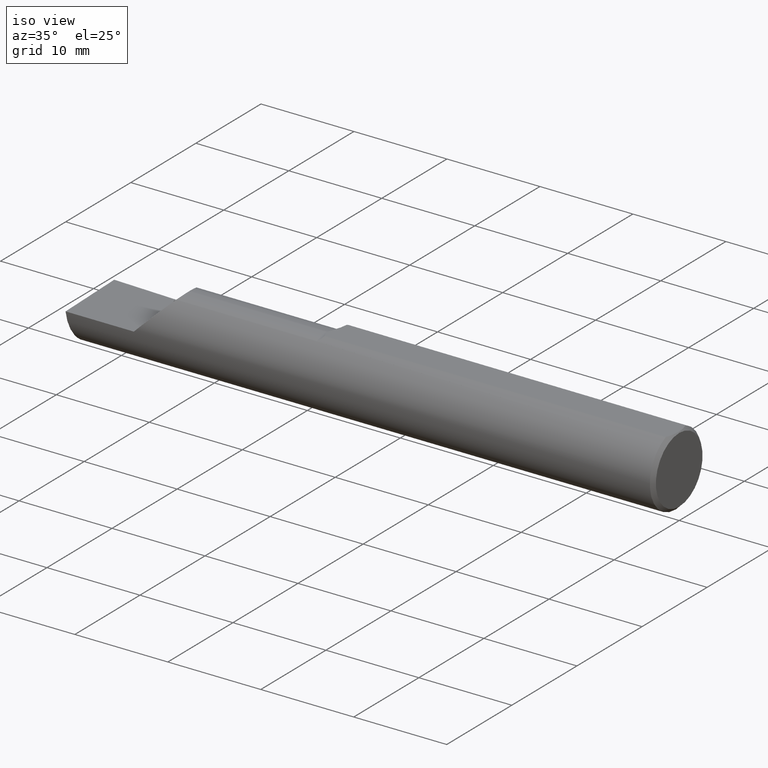
[diagram: clean part render]
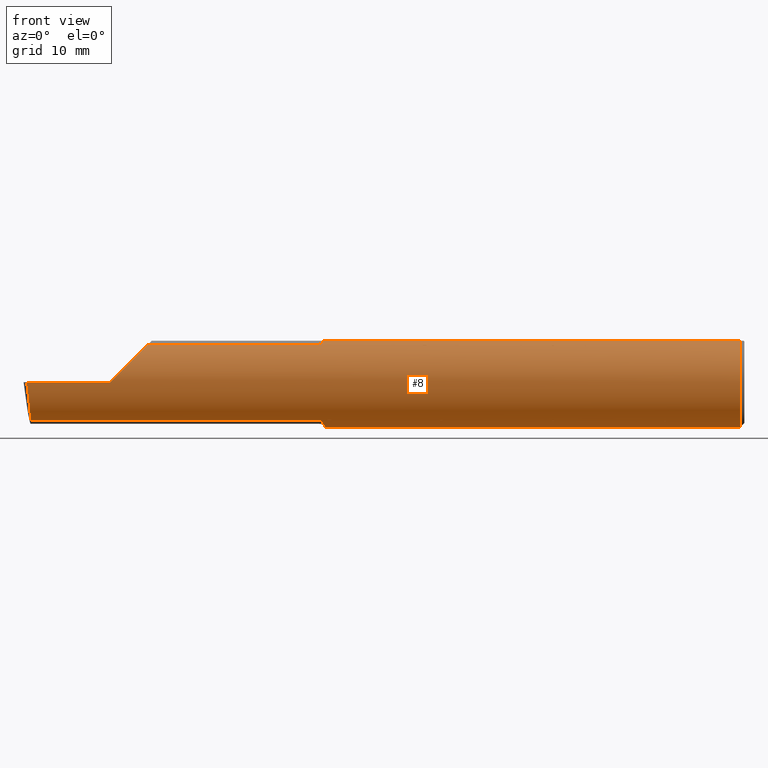
[diagram: tour spotlight — one face highlighted and labeled with its STEP entity id]
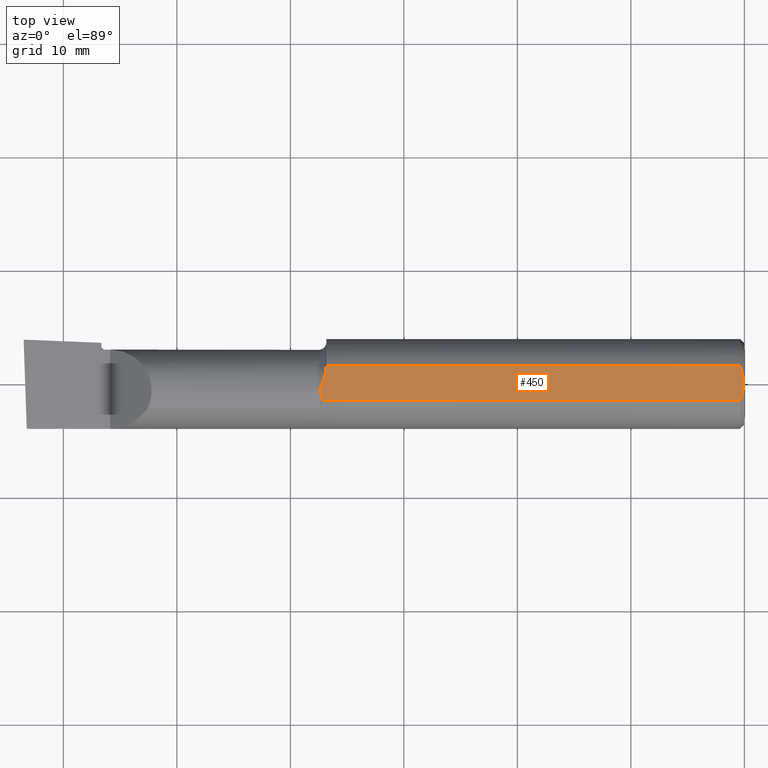
[diagram: tour spotlight — one face highlighted and labeled with its STEP entity id]
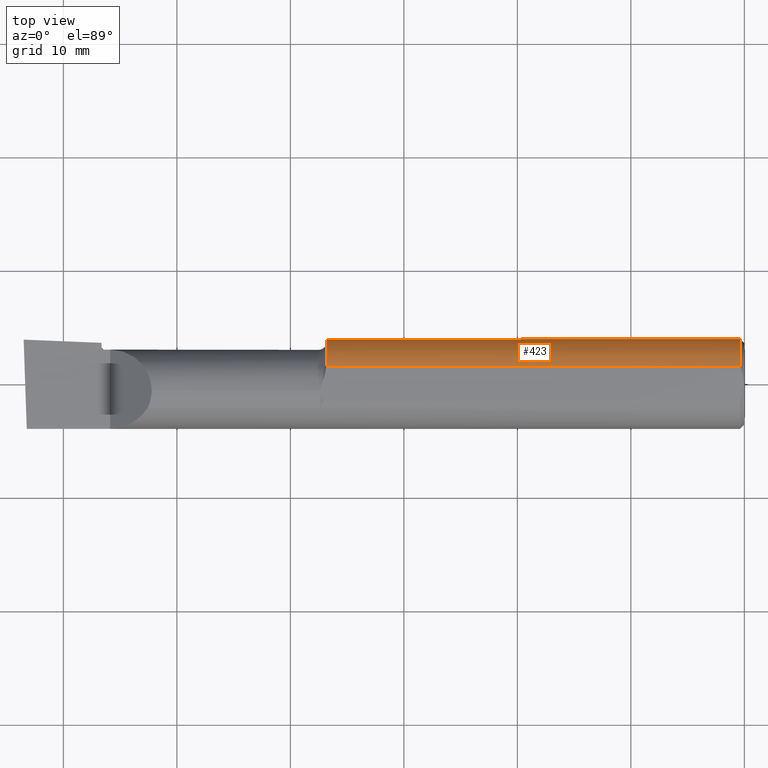
[diagram: tour spotlight — one face highlighted and labeled with its STEP entity id]
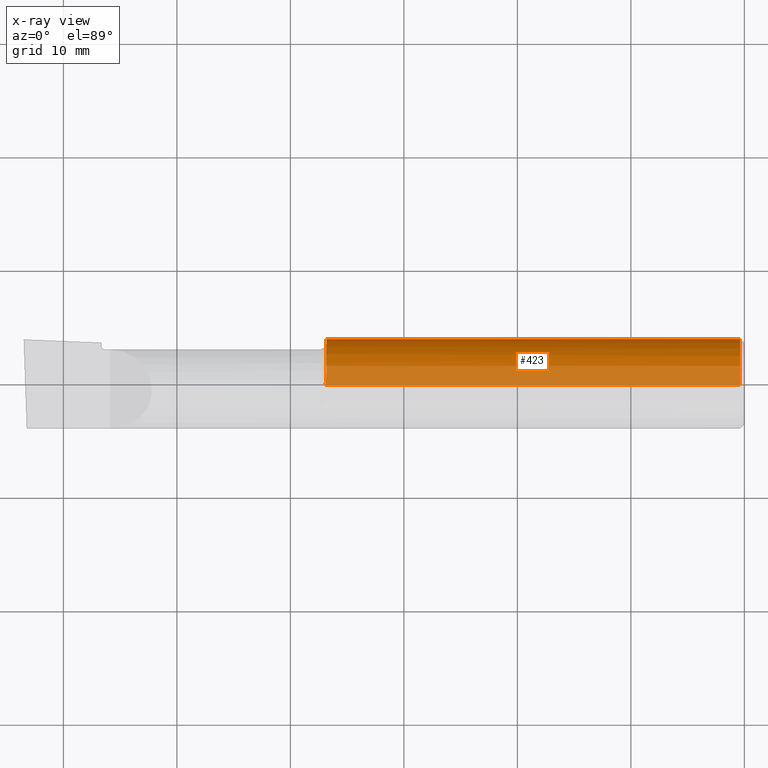
[diagram: x-ray of the same camera — body ghosted, this tour face saturated]
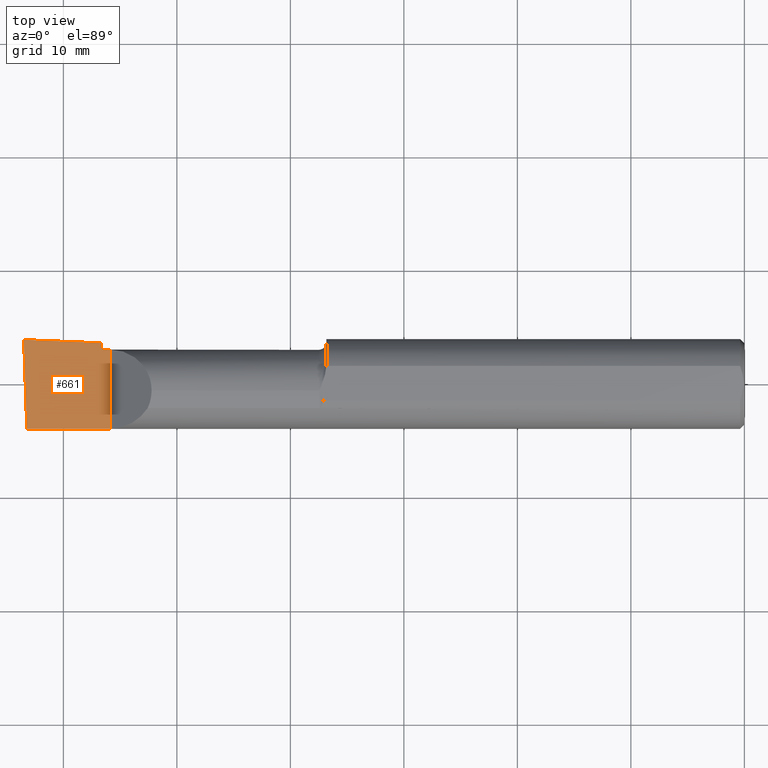
[diagram: tour spotlight — one face highlighted and labeled with its STEP entity id]
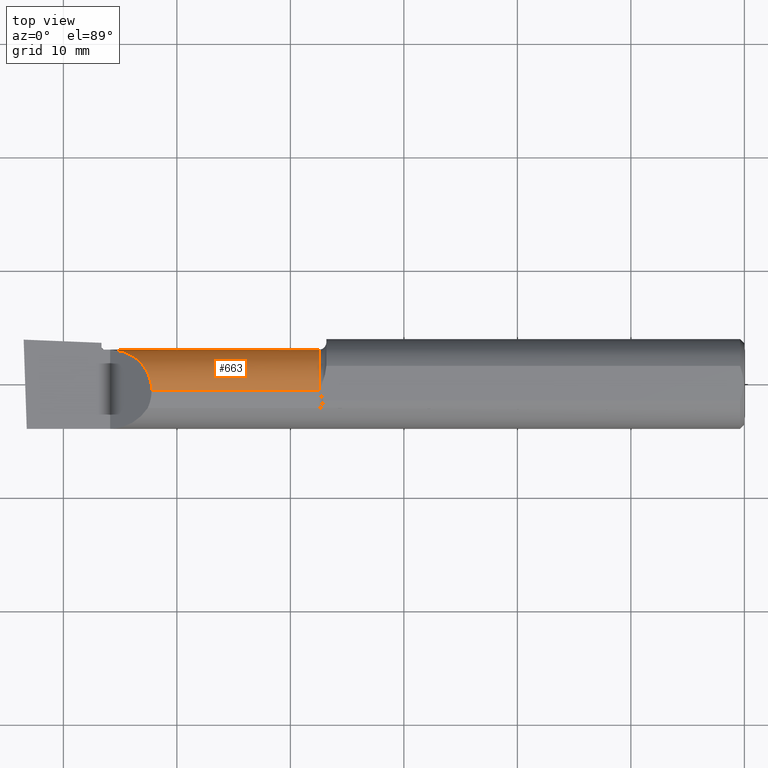
[diagram: tour spotlight — one face highlighted and labeled with its STEP entity id]
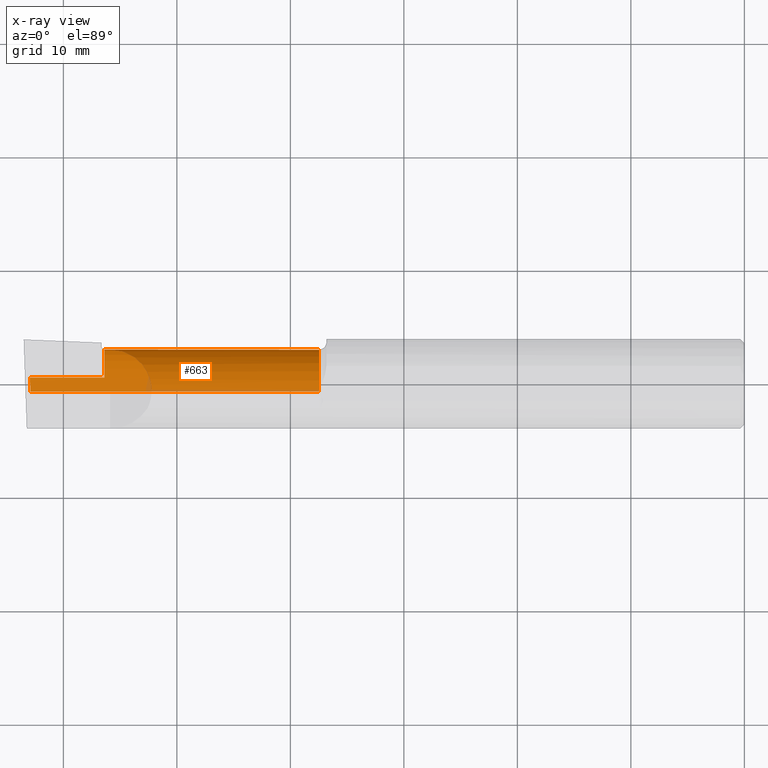
[diagram: x-ray of the same camera — body ghosted, this tour face saturated]
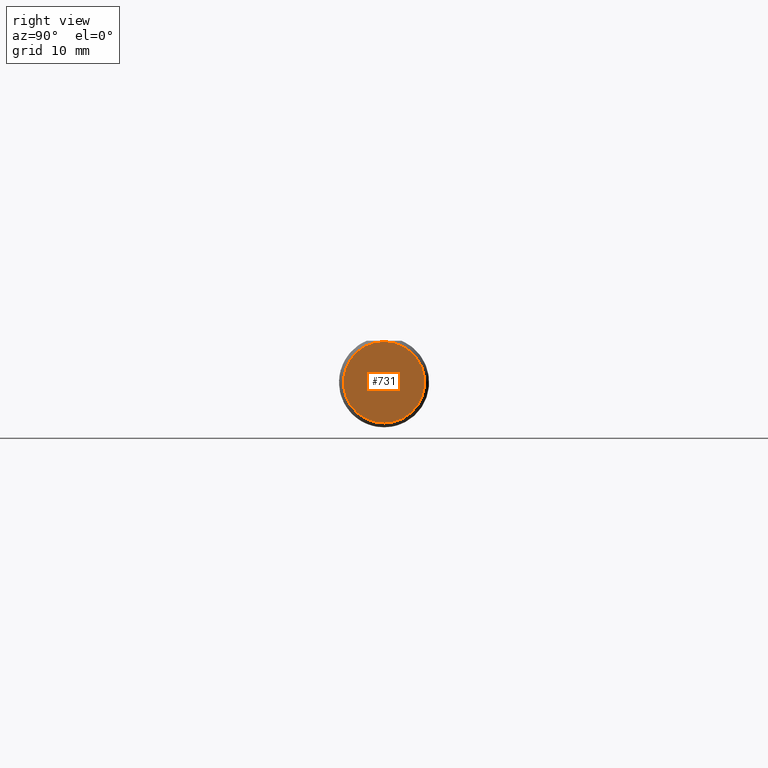
[diagram: tour spotlight — one face highlighted and labeled with its STEP entity id]
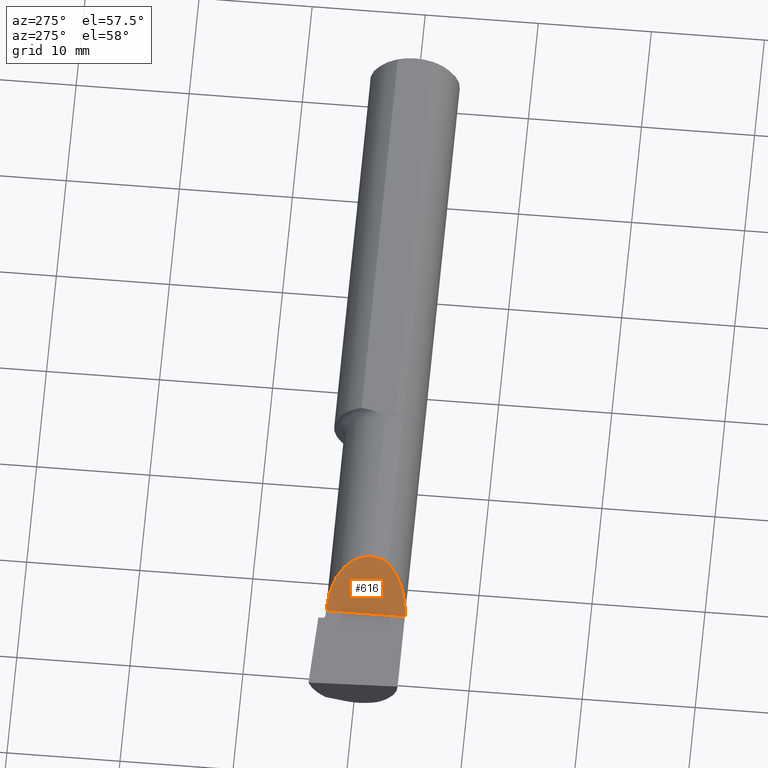
[diagram: tour spotlight — one face highlighted and labeled with its STEP entity id]
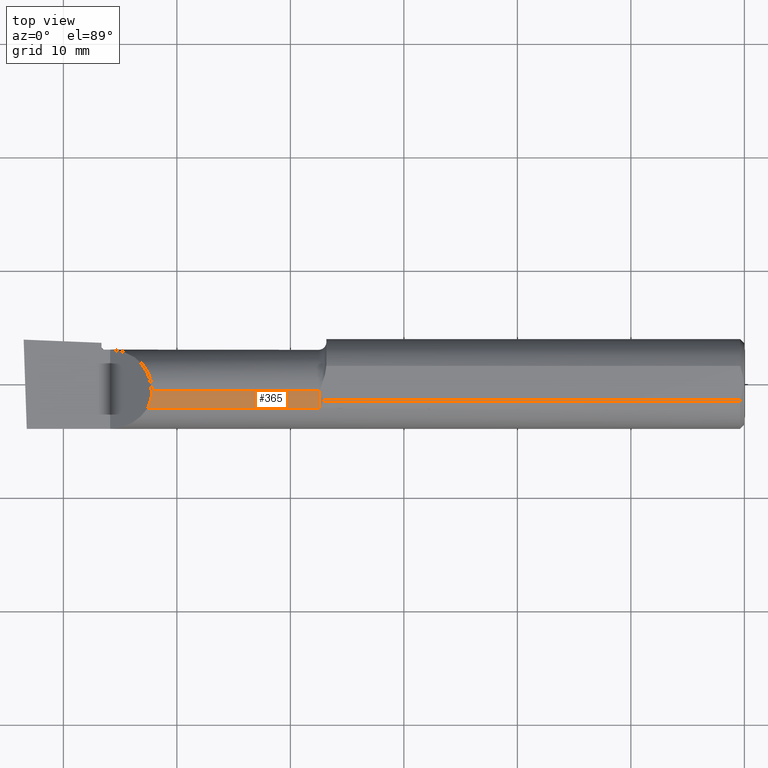
[diagram: tour spotlight — one face highlighted and labeled with its STEP entity id]
A machine part: a face-by-face anatomy tour. The part has 20 B-rep faces; the first image is the clean iso view, then the 8 largest visible faces are spotlighted one at a time (largest first), each with its STEP entity span.

Face 1 — front view, entity #8. In plain terms, the highlighted cylindrical surface (partial cylindrical patch) has radius 3.9649 mm, axis along (1, -0, -0).
Definition (entity closure, byte-faithful):
#1 = CARTESIAN_POINT ( 'NONE',  ( -2.199999999999999289, -0.1560999999999999888, 3.826894855694925850E-18 ) ) ;
#8 = ADVANCED_FACE ( 'NONE', ( #540 ), #366, .T. ) ;
#9 = CARTESIAN_POINT ( 'NONE',  ( -1.473482932671292822, -0.08569999999999937390, -0.1304711462354803675 ) ) ;
#12 = EDGE_CURVE ( 'NONE', #191, #582, #621, .T. ) ;
#13 = LINE ( 'NONE', #735, #565 ) ;
#31 = CARTESIAN_POINT ( 'NONE',  ( -1.452458313762935438, 4.840126649484621828E-13, -0.1560999999999999888 ) ) ;
#37 = EDGE_CURVE ( 'NONE', #448, #57, #388, .T. ) ;
#47 = ORIENTED_EDGE ( 'NONE', *, *, #668, .T. ) ;
#57 = VERTEX_POINT ( 'NONE', #1 ) ;
#58 = CARTESIAN_POINT ( 'NONE',  ( -0.01500000000000024925, 0.000000000000000000, 0.000000000000000000 ) ) ;
#68 = EDGE_CURVE ( 'NONE', #57, #191, #234, .T. ) ;
#71 = CARTESIAN_POINT ( 'NONE',  ( -2.482667168175673122, -0.1560999999999999888, -0.05371247775559874482 ) ) ;
#72 = B_SPLINE_CURVE_WITH_KNOTS ( 'NONE', 3,
 ( #368, #9, #486, #653, #484, #353, #710, #122, #182, #475, #605, #73 ),
 .UNSPECIFIED., .F., .F.,
 ( 4, 2, 2, 2, 2, 4 ),
 ( 1.966861314630388892E-07, 0.0001139043861855418911, 0.0002276120862396207255, 0.0004550274863477778522, 0.0009098582865640920513, 0.001819519886996720341 ),
 .UNSPECIFIED. ) ;
#73 = CARTESIAN_POINT ( 'NONE',  ( -1.454862523376329930, -0.02500000000022618157, -0.1540850739039595352 ) ) ;
#84 = CARTESIAN_POINT ( 'NONE',  ( -1.469508261956889994, -0.08224208440130481579, 0.1326837206089797327 ) ) ;
#87 = EDGE_LOOP ( 'NONE', ( #94, #285, #47, #445, #559, #316, #493, #692, #222, #157, #342 ) ) ;
#94 = ORIENTED_EDGE ( 'NONE', *, *, #687, .T. ) ;
#109 = VERTEX_POINT ( 'NONE', #492 ) ;
#113 = DIRECTION ( 'NONE',  ( 0.000000000000000000, 0.000000000000000000, 1.000000000000000000 ) ) ;
#122 = CARTESIAN_POINT ( 'NONE',  ( -1.463126895908789304, -0.06887538526317449339, -0.1401954838979543316 ) ) ;
#128 = DIRECTION ( 'NONE',  ( 1.000000000000000000, -0.000000000000000000, -0.000000000000000000 ) ) ;
#134 = B_SPLINE_CURVE_WITH_KNOTS ( 'NONE', 3,
 ( #455, #686, #339, #156, #574, #84, #322, #449, #494, #155 ),
 .UNSPECIFIED., .F., .F.,
 ( 4, 2, 2, 2, 4 ),
 ( 5.292347910167346680E-07, 0.0004247077115782347829, 0.0006367969499718469746, 0.0007428415691686530162, 0.0008488861883654591663 ),
 .UNSPECIFIED. ) ;
#141 = CARTESIAN_POINT ( 'NONE',  ( -2.475676552398977215, -0.08569999999999922125, -0.1304711462354804230 ) ) ;
#144 = CARTESIAN_POINT ( 'NONE',  ( -1.453095797791018828, -0.008405471570478762616, -0.1561000000000260235 ) ) ;
#146 = VERTEX_POINT ( 'NONE', #509 ) ;
#155 = CARTESIAN_POINT ( 'NONE',  ( -1.474999999999999867, -0.08569999999999944329, 0.1304711462354802842 ) ) ;
#156 = CARTESIAN_POINT ( 'NONE',  ( -1.466324726609743001, -0.07684337455390498339, 0.1359013108991525554 ) ) ;
#157 = ORIENTED_EDGE ( 'NONE', *, *, #12, .T. ) ;
#163 = EDGE_CURVE ( 'NONE', #582, #617, #13, .T. ) ;
#173 = DIRECTION ( 'NONE',  ( 1.000000000000000000, -0.000000000000000000, -0.000000000000000000 ) ) ;
#182 = CARTESIAN_POINT ( 'NONE',  ( -1.461707069840809892, -0.06372296352525426422, -0.1426158673174760527 ) ) ;
#183 = CARTESIAN_POINT ( 'NONE',  ( -2.489266190342419360, -0.1561000000000000165, 3.826894855694925850E-18 ) ) ;
#186 = DIRECTION ( 'NONE',  ( -1.000000000000000000, -0.000000000000000000, -0.000000000000000000 ) ) ;
#191 = VERTEX_POINT ( 'NONE', #183 ) ;
#195 = DIRECTION ( 'NONE',  ( -1.000000000000000000, 0.000000000000000000, 0.000000000000000000 ) ) ;
#200 = CARTESIAN_POINT ( 'NONE',  ( -2.069528853764522669, -0.08570000000000299600, 0.1304711462354783136 ) ) ;
#205 = DIRECTION ( 'NONE',  ( 1.000000000000000000, -0.000000000000000000, -0.000000000000000000 ) ) ;
#210 = VECTOR ( 'NONE', #195, 39.37007874015748143 ) ;
#222 = ORIENTED_EDGE ( 'NONE', *, *, #68, .T. ) ;
#234 = LINE ( 'NONE', #658, #530 ) ;
#259 = AXIS2_PLACEMENT_3D ( 'NONE', #603, #128, #696 ) ;
#274 = EDGE_CURVE ( 'NONE', #670, #622, #134, .T. ) ;
#277 = EDGE_CURVE ( 'NONE', #146, #623, #537, .T. ) ;
#285 = ORIENTED_EDGE ( 'NONE', *, *, #277, .T. ) ;
#288 = CARTESIAN_POINT ( 'NONE',  ( -2.069528853764522669, -0.08570000000000299600, 0.1304711462354783136 ) ) ;
#294 = CARTESIAN_POINT ( 'NONE',  ( -2.099017382551549460, -0.1305938407426061876, 0.1009826174484516337 ) ) ;
#300 = CARTESIAN_POINT ( 'NONE',  ( -1.474999999999999867, -0.08569999999999930451, -0.1304711462354803397 ) ) ;
#313 = EDGE_CURVE ( 'NONE', #622, #448, #382, .T. ) ;
#316 = ORIENTED_EDGE ( 'NONE', *, *, #274, .T. ) ;
#322 = CARTESIAN_POINT ( 'NONE',  ( -1.470308733175472060, -0.08325729668116128857, 0.1320471792325037530 ) ) ;
#324 = VERTEX_POINT ( 'NONE', #618 ) ;
#334 = CARTESIAN_POINT ( 'NONE',  ( -1.453876643924216339, -0.01674057265308588963, -0.1554251497364122214 ) ) ;
#339 = CARTESIAN_POINT ( 'NONE',  ( -1.463486186723763405, -0.06993940022577681270, 0.1396536156489262825 ) ) ;
#341 = EDGE_CURVE ( 'NONE', #109, #670, #734, .T. ) ;
#342 = ORIENTED_EDGE ( 'NONE', *, *, #163, .T. ) ;
#353 = CARTESIAN_POINT ( 'NONE',  ( -1.467151728812752909, -0.07866717671370132559, -0.1348531152278540646 ) ) ;
#366 = CYLINDRICAL_SURFACE ( 'NONE', #259, 0.1560999999999999888 ) ;
#367 = CARTESIAN_POINT ( 'NONE',  ( -1.452458313762935438, 4.840126649484621828E-13, -0.1560999999999999888 ) ) ;
#368 = CARTESIAN_POINT ( 'NONE',  ( -1.474999999999999867, -0.08569999999999930451, -0.1304711462354803397 ) ) ;
#382 = LINE ( 'NONE', #393, #210 ) ;
#388 =( BOUNDED_CURVE ( )  B_SPLINE_CURVE ( 3, ( #288, #294, #414, #584 ),
 .UNSPECIFIED., .F., .T. ) 
 B_SPLINE_CURVE_WITH_KNOTS ( ( 4, 4 ),
 ( 0.5811757715714754857, 1.570796326794896558 ),
 .UNSPECIFIED. ) 
 CURVE ( )  GEOMETRIC_REPRESENTATION_ITEM ( )  RATIONAL_B_SPLINE_CURVE ( ( 1.000000000000000000, 0.9200392120920011241, 0.9200392120920011241, 1.000000000000000000 ) ) 
 REPRESENTATION_ITEM ( '' )  );
#393 = CARTESIAN_POINT ( 'NONE',  ( -1.847499999999999920, -0.08569999999999922125, 0.1304711462354804230 ) ) ;
#414 = CARTESIAN_POINT ( 'NONE',  ( -2.146287522244403334, -0.1560999999999999888, 0.05371247775559713500 ) ) ;
#445 = ORIENTED_EDGE ( 'NONE', *, *, #577, .T. ) ;
#448 = VERTEX_POINT ( 'NONE', #200 ) ;
#449 = CARTESIAN_POINT ( 'NONE',  ( -1.472282960142827113, -0.08496306084893968935, 0.1309561502377617759 ) ) ;
#455 = CARTESIAN_POINT ( 'NONE',  ( -1.460843495424060334, -0.06001999666777307896, 0.1440999999999999504 ) ) ;
#475 = CARTESIAN_POINT ( 'NONE',  ( -1.457963511987622862, -0.04781653154435672182, -0.1490354188630817478 ) ) ;
#481 = CARTESIAN_POINT ( 'NONE',  ( -2.477743596163800799, -0.1305938407426047165, -0.1009826174484543537 ) ) ;
#484 = CARTESIAN_POINT ( 'NONE',  ( -1.469310887745682193, -0.08198244806377580352, -0.1328448627315361730 ) ) ;
#486 = CARTESIAN_POINT ( 'NONE',  ( -1.472162220462625681, -0.08489276752862849607, -0.1310023188550718809 ) ) ;
#492 = CARTESIAN_POINT ( 'NONE',  ( -0.01500000000000024925, -0.06001999666777732556, 0.1440999999999999781 ) ) ;
#493 = ORIENTED_EDGE ( 'NONE', *, *, #313, .T. ) ;
#494 = CARTESIAN_POINT ( 'NONE',  ( -1.473558490372086416, -0.08570000000287442132, 0.1304711462335921557 ) ) ;
#498 = LINE ( 'NONE', #547, #647 ) ;
#509 = CARTESIAN_POINT ( 'NONE',  ( -1.454862523376329930, -0.02500000000022618157, -0.1540850739039595352 ) ) ;
#528 = VECTOR ( 'NONE', #562, 39.37007874015748143 ) ;
#530 = VECTOR ( 'NONE', #186, 39.37007874015748143 ) ;
#536 = AXIS2_PLACEMENT_3D ( 'NONE', #58, #644, #113 ) ;
#537 = B_SPLINE_CURVE_WITH_KNOTS ( 'NONE', 3,
 ( #620, #334, #144, #31 ),
 .UNSPECIFIED., .F., .F.,
 ( 4, 4 ),
 ( 0.001819519886996720341, 0.002475127250578835168 ),
 .UNSPECIFIED. ) ;
#540 = FACE_OUTER_BOUND ( 'NONE', #87, .T. ) ;
#547 = CARTESIAN_POINT ( 'NONE',  ( -2.500000000000000000, 0.000000000000000000, -0.1560999999999999888 ) ) ;
#548 = CARTESIAN_POINT ( 'NONE',  ( -2.475676552398977215, -0.08569999999999922125, -0.1304711462354804230 ) ) ;
#559 = ORIENTED_EDGE ( 'NONE', *, *, #341, .T. ) ;
#562 = DIRECTION ( 'NONE',  ( -1.000000000000000000, 0.000000000000000000, 0.000000000000000000 ) ) ;
#565 = VECTOR ( 'NONE', #205, 39.37007874015748143 ) ;
#567 = CARTESIAN_POINT ( 'NONE',  ( -2.500000000000000000, -0.06001999666777736719, 0.1440999999999999504 ) ) ;
#574 = CARTESIAN_POINT ( 'NONE',  ( -1.467376702052391790, -0.07908290169519974211, 0.1346075232099597507 ) ) ;
#577 = EDGE_CURVE ( 'NONE', #324, #109, #699, .T. ) ;
#582 = VERTEX_POINT ( 'NONE', #141 ) ;
#584 = CARTESIAN_POINT ( 'NONE',  ( -2.199999999999999289, -0.1560999999999999888, 3.826894855694925850E-18 ) ) ;
#603 = CARTESIAN_POINT ( 'NONE',  ( -2.500000000000000000, 0.000000000000000000, 0.000000000000000000 ) ) ;
#605 = CARTESIAN_POINT ( 'NONE',  ( -1.456230440715365448, -0.03646003586407847719, -0.1522257056384942187 ) ) ;
#617 = VERTEX_POINT ( 'NONE', #300 ) ;
#618 = CARTESIAN_POINT ( 'NONE',  ( -0.01500000000000024925, 0.000000000000000000, -0.1560999999999999888 ) ) ;
#620 = CARTESIAN_POINT ( 'NONE',  ( -1.454862523376329930, -0.02500000000022618157, -0.1540850739039595352 ) ) ;
#621 =( BOUNDED_CURVE ( )  B_SPLINE_CURVE ( 3, ( #747, #71, #481, #548 ),
 .UNSPECIFIED., .F., .T. ) 
 B_SPLINE_CURVE_WITH_KNOTS ( ( 4, 4 ),
 ( 4.987330662103025780, 5.976951217326474719 ),
 .UNSPECIFIED. ) 
 CURVE ( )  GEOMETRIC_REPRESENTATION_ITEM ( )  RATIONAL_B_SPLINE_CURVE ( ( 1.000000000000000000, 0.9200392120919966832, 0.9200392120919966832, 1.000000000000000000 ) ) 
 REPRESENTATION_ITEM ( '' )  );
#622 = VERTEX_POINT ( 'NONE', #667 ) ;
#623 = VERTEX_POINT ( 'NONE', #367 ) ;
#644 = DIRECTION ( 'NONE',  ( -1.000000000000000000, 0.000000000000000000, 0.000000000000000000 ) ) ;
#647 = VECTOR ( 'NONE', #173, 39.37007874015748143 ) ;
#653 = CARTESIAN_POINT ( 'NONE',  ( -1.470128093538974889, -0.08306175160951252689, -0.1321708551218283567 ) ) ;
#658 = CARTESIAN_POINT ( 'NONE',  ( -2.056000000000000050, -0.1560999999999999888, 3.826894855694925850E-18 ) ) ;
#667 = CARTESIAN_POINT ( 'NONE',  ( -1.474999999999999867, -0.08569999999999944329, 0.1304711462354802842 ) ) ;
#668 = EDGE_CURVE ( 'NONE', #623, #324, #498, .T. ) ;
#670 = VERTEX_POINT ( 'NONE', #700 ) ;
#686 = CARTESIAN_POINT ( 'NONE',  ( -1.462083001804619808, -0.06507129184707162450, 0.1419960532975073908 ) ) ;
#687 = EDGE_CURVE ( 'NONE', #617, #146, #72, .T. ) ;
#692 = ORIENTED_EDGE ( 'NONE', *, *, #37, .T. ) ;
#696 = DIRECTION ( 'NONE',  ( 0.000000000000000000, 0.000000000000000000, -1.000000000000000000 ) ) ;
#699 = CIRCLE ( 'NONE', #536, 0.1560999999999999888 ) ;
#700 = CARTESIAN_POINT ( 'NONE',  ( -1.460843495424060334, -0.06001999666777307896, 0.1440999999999999504 ) ) ;
#710 = CARTESIAN_POINT ( 'NONE',  ( -1.466062054560814065, -0.07627963852233818343, -0.1362221433799750414 ) ) ;
#734 = LINE ( 'NONE', #567, #528 ) ;
#735 = CARTESIAN_POINT ( 'NONE',  ( -1.847499999999999920, -0.08569999999999922125, -0.1304711462354804230 ) ) ;
#747 = CARTESIAN_POINT ( 'NONE',  ( -2.489266190342419360, -0.1561000000000000165, 3.826894855694925850E-18 ) ) ;

Face 2 — top view, entity #450. In plain terms, the highlighted planar face has unit normal (0, 0, 1).
Definition (entity closure, byte-faithful):
#45 = CARTESIAN_POINT ( 'NONE',  ( -1.471844053232376659, -0.02500000000003148315, 0.1440999999999999504 ) ) ;
#48 = AXIS2_PLACEMENT_3D ( 'NONE', #289, #526, #521 ) ;
#63 = CARTESIAN_POINT ( 'NONE',  ( -1.468148277183320971, -0.03981762987256244612, 0.1440999999999999504 ) ) ;
#74 = CARTESIAN_POINT ( 'NONE',  ( -0.004112937275917732775, 0.02048434576366622156, 0.1440999999999999226 ) ) ;
#79 = B_SPLINE_CURVE_WITH_KNOTS ( 'NONE', 3,
 ( #275, #517, #271, #514, #208, #637 ),
 .UNSPECIFIED., .F., .F.,
 ( 4, 2, 4 ),
 ( 0.005420603660124381773, 0.006200393792043773673, 0.006980183923963165574 ),
 .UNSPECIFIED. ) ;
#100 = VERTEX_POINT ( 'NONE', #390 ) ;
#109 = VERTEX_POINT ( 'NONE', #492 ) ;
#114 = CARTESIAN_POINT ( 'NONE',  ( -1.464985600317321612, -0.04846509284843828619, 0.1440999999999999504 ) ) ;
#127 = CARTESIAN_POINT ( 'NONE',  ( -1.469201185154610068, -0.03693468910894925211, 0.1440999999999999504 ) ) ;
#130 = CARTESIAN_POINT ( 'NONE',  ( -0.008307085287356189701, 0.04068523568973313881, 0.1441000000000000059 ) ) ;
#137 = EDGE_CURVE ( 'NONE', #100, #566, #319, .T. ) ;
#165 = VECTOR ( 'NONE', #684, 39.37007874015748143 ) ;
#167 = CARTESIAN_POINT ( 'NONE',  ( -1.450050504025077291, 0.06001999666777734638, 0.1440999999999999504 ) ) ;
#170 = ORIENTED_EDGE ( 'NONE', *, *, #711, .T. ) ;
#176 = ORIENTED_EDGE ( 'NONE', *, *, #341, .F. ) ;
#208 = CARTESIAN_POINT ( 'NONE',  ( -0.01133355301893011931, -0.05048430180739575668, 0.1440999999999999781 ) ) ;
#221 = CARTESIAN_POINT ( 'NONE',  ( -1.463353959584570596, 0.002866311517161839687, 0.1440999999999999504 ) ) ;
#229 = CARTESIAN_POINT ( 'NONE',  ( -1.454082834115635547, 0.03088512097718992475, 0.1440999999999999781 ) ) ;
#242 = CARTESIAN_POINT ( 'NONE',  ( -1.450050504025077291, 0.06001999666777734638, 0.1440999999999999504 ) ) ;
#251 = CARTESIAN_POINT ( 'NONE',  ( -0.003000000000000205194, 0.01020794464685660825, 0.1440999999999999781 ) ) ;
#265 = EDGE_CURVE ( 'NONE', #566, #109, #79, .T. ) ;
#271 = CARTESIAN_POINT ( 'NONE',  ( -0.004121137220901559609, -0.02053748477038522605, 0.1441000000000000059 ) ) ;
#275 = CARTESIAN_POINT ( 'NONE',  ( -0.003000000000000204760, 6.421145895685612357E-21, 0.1440999999999999504 ) ) ;
#289 = CARTESIAN_POINT ( 'NONE',  ( 2.500000000000000000, 0.06250000000000000000, 0.1440999999999999504 ) ) ;
#306 = CARTESIAN_POINT ( 'NONE',  ( -1.471844053232376659, -0.02500000000003148315, 0.1440999999999999504 ) ) ;
#319 = B_SPLINE_CURVE_WITH_KNOTS ( 'NONE', 3,
 ( #435, #718, #130, #74, #251, #724 ),
 .UNSPECIFIED., .F., .F.,
 ( 4, 2, 4 ),
 ( 0.003862504283746397583, 0.004641553971935389461, 0.005420603660124381773 ),
 .UNSPECIFIED. ) ;
#327 = B_SPLINE_CURVE_WITH_KNOTS ( 'NONE', 3,
 ( #167, #404, #229, #697, #221, #344, #415, #420, #595, #45 ),
 .UNSPECIFIED., .F., .F.,
 ( 4, 2, 2, 2, 4 ),
 ( 0.01301670781631528509, 0.01412932456335375814, 0.01468563293687299640, 0.01496378712363261726, 0.01524194131039223639 ),
 .UNSPECIFIED. ) ;
#333 = EDGE_LOOP ( 'NONE', ( #510, #383, #170, #176, #527, #446 ) ) ;
#341 = EDGE_CURVE ( 'NONE', #109, #670, #734, .T. ) ;
#344 = CARTESIAN_POINT ( 'NONE',  ( -1.467139718007820059, -0.007416860360642662381, 0.1440999999999999504 ) ) ;
#383 = ORIENTED_EDGE ( 'NONE', *, *, #539, .T. ) ;
#389 = LINE ( 'NONE', #678, #165 ) ;
#390 = CARTESIAN_POINT ( 'NONE',  ( -0.01500000000000023884, 0.06001999666777732556, 0.1440999999999999504 ) ) ;
#396 = EDGE_CURVE ( 'NONE', #727, #100, #389, .T. ) ;
#404 = CARTESIAN_POINT ( 'NONE',  ( -1.450532541532473463, 0.04511886254872560231, 0.1440999999999999504 ) ) ;
#411 = CARTESIAN_POINT ( 'NONE',  ( -0.003000000000000204760, 6.421145895685612357E-21, 0.1440999999999999504 ) ) ;
#415 = CARTESIAN_POINT ( 'NONE',  ( -1.468418672230969779, -0.01083899323586181608, 0.1440999999999999504 ) ) ;
#420 = CARTESIAN_POINT ( 'NONE',  ( -1.470724021719190588, -0.01776615298045939803, 0.1440999999999999781 ) ) ;
#435 = CARTESIAN_POINT ( 'NONE',  ( -0.01500000000000023884, 0.06001999666777732556, 0.1440999999999999504 ) ) ;
#446 = ORIENTED_EDGE ( 'NONE', *, *, #137, .F. ) ;
#450 = ADVANCED_FACE ( 'NONE', ( #581 ), #740, .T. ) ;
#492 = CARTESIAN_POINT ( 'NONE',  ( -0.01500000000000024925, -0.06001999666777732556, 0.1440999999999999781 ) ) ;
#510 = ORIENTED_EDGE ( 'NONE', *, *, #396, .F. ) ;
#514 = CARTESIAN_POINT ( 'NONE',  ( -0.008316884378888314902, -0.04071872938164906863, 0.1440999999999999226 ) ) ;
#517 = CARTESIAN_POINT ( 'NONE',  ( -0.003000000000000203892, -0.01021764673483457724, 0.1440999999999999781 ) ) ;
#521 = DIRECTION ( 'NONE',  ( 1.000000000000000000, 0.000000000000000000, -0.000000000000000000 ) ) ;
#526 = DIRECTION ( 'NONE',  ( 0.000000000000000000, 0.000000000000000000, 1.000000000000000000 ) ) ;
#527 = ORIENTED_EDGE ( 'NONE', *, *, #265, .F. ) ;
#528 = VECTOR ( 'NONE', #562, 39.37007874015748143 ) ;
#539 = EDGE_CURVE ( 'NONE', #727, #569, #327, .T. ) ;
#549 = CARTESIAN_POINT ( 'NONE',  ( -1.471844053232375105, -0.02804753169359753412, 0.1440999999999999781 ) ) ;
#562 = DIRECTION ( 'NONE',  ( -1.000000000000000000, 0.000000000000000000, 0.000000000000000000 ) ) ;
#566 = VERTEX_POINT ( 'NONE', #411 ) ;
#567 = CARTESIAN_POINT ( 'NONE',  ( -2.500000000000000000, -0.06001999666777736719, 0.1440999999999999504 ) ) ;
#569 = VERTEX_POINT ( 'NONE', #585 ) ;
#581 = FACE_OUTER_BOUND ( 'NONE', #333, .T. ) ;
#585 = CARTESIAN_POINT ( 'NONE',  ( -1.471844053232376659, -0.02500000000003148315, 0.1440999999999999504 ) ) ;
#592 = CARTESIAN_POINT ( 'NONE',  ( -1.471036826405246911, -0.03107590170041914929, 0.1440999999999999781 ) ) ;
#595 = CARTESIAN_POINT ( 'NONE',  ( -1.471844053232385985, -0.02136326841098664525, 0.1440999999999998948 ) ) ;
#602 = CARTESIAN_POINT ( 'NONE',  ( -1.462837095251398489, -0.05422015848554270073, 0.1440999999999999781 ) ) ;
#632 = B_SPLINE_CURVE_WITH_KNOTS ( 'NONE', 3,
 ( #306, #549, #592, #127, #63, #114, #602, #706 ),
 .UNSPECIFIED., .F., .F.,
 ( 4, 2, 2, 4 ),
 ( 0.0006785821176393244452, 0.0009116715494801274884, 0.001144760981320930640, 0.001610939845002537377 ),
 .UNSPECIFIED. ) ;
#637 = CARTESIAN_POINT ( 'NONE',  ( -0.01500000000000024925, -0.06001999666777732556, 0.1440999999999999781 ) ) ;
#670 = VERTEX_POINT ( 'NONE', #700 ) ;
#678 = CARTESIAN_POINT ( 'NONE',  ( -2.500000000000000000, 0.06001999666777736719, 0.1440999999999999504 ) ) ;
#684 = DIRECTION ( 'NONE',  ( 1.000000000000000000, -0.000000000000000000, -0.000000000000000000 ) ) ;
#697 = CARTESIAN_POINT ( 'NONE',  ( -1.460816084744947396, 0.009840729273027787327, 0.1440999999999999781 ) ) ;
#700 = CARTESIAN_POINT ( 'NONE',  ( -1.460843495424060334, -0.06001999666777307896, 0.1440999999999999504 ) ) ;
#706 = CARTESIAN_POINT ( 'NONE',  ( -1.460843495424060334, -0.06001999666777307896, 0.1440999999999999504 ) ) ;
#711 = EDGE_CURVE ( 'NONE', #569, #670, #632, .T. ) ;
#718 = CARTESIAN_POINT ( 'NONE',  ( -0.01132650618349836762, 0.05046597439866586793, 0.1440999999999999781 ) ) ;
#724 = CARTESIAN_POINT ( 'NONE',  ( -0.003000000000000204760, 6.421145895685612357E-21, 0.1440999999999999504 ) ) ;
#727 = VERTEX_POINT ( 'NONE', #242 ) ;
#734 = LINE ( 'NONE', #567, #528 ) ;
#740 = PLANE ( 'NONE',  #48 ) ;

Face 3 — top view, entity #423. An x-ray twin of the same camera follows (body ghosted, this face saturated) — the face is partly hidden behind the body. In plain terms, the highlighted cylindrical surface (partial cylindrical patch) has radius 3.9649 mm, axis along (1, -0, -0).
Definition (entity closure, byte-faithful):
#19 = DIRECTION ( 'NONE',  ( 0.000000000000000000, 0.000000000000000000, 1.000000000000000000 ) ) ;
#22 = ORIENTED_EDGE ( 'NONE', *, *, #396, .T. ) ;
#32 = EDGE_CURVE ( 'NONE', #623, #436, #209, .T. ) ;
#35 = CIRCLE ( 'NONE', #323, 0.1560999999999999888 ) ;
#64 = CARTESIAN_POINT ( 'NONE',  ( -1.450730260234562641, 0.03041887409375948828, -0.1532281963622442456 ) ) ;
#89 = CARTESIAN_POINT ( 'NONE',  ( -1.450000000000000178, 0.07070000000000016549, -0.1391715488165593539 ) ) ;
#99 = CIRCLE ( 'NONE', #610, 0.1560999999999999888 ) ;
#100 = VERTEX_POINT ( 'NONE', #390 ) ;
#101 = FACE_OUTER_BOUND ( 'NONE', #406, .T. ) ;
#118 = CARTESIAN_POINT ( 'NONE',  ( -1.450214390677043941, 0.04807667021748287389, -0.1486381104007177822 ) ) ;
#147 = DIRECTION ( 'NONE',  ( 1.000000000000000000, -0.000000000000000000, -0.000000000000000000 ) ) ;
#165 = VECTOR ( 'NONE', #684, 39.37007874015748143 ) ;
#166 = CARTESIAN_POINT ( 'NONE',  ( -1.450348850910508469, 0.04224677410306576508, -0.1503974671975661925 ) ) ;
#173 = DIRECTION ( 'NONE',  ( 1.000000000000000000, -0.000000000000000000, -0.000000000000000000 ) ) ;
#177 = CARTESIAN_POINT ( 'NONE',  ( -1.451609734521864148, 0.01225372253022634361, -0.1557388326591280514 ) ) ;
#209 = B_SPLINE_CURVE_WITH_KNOTS ( 'NONE', 3,
 ( #594, #707, #177, #422, #64, #166, #118, #588, #358, #410 ),
 .UNSPECIFIED., .F., .F.,
 ( 4, 2, 2, 2, 4 ),
 ( 0.002475127250578835168, 0.002949952465898010752, 0.003424777681217186336, 0.003899602896536361919, 0.004374428111855537503 ),
 .UNSPECIFIED. ) ;
#213 = CARTESIAN_POINT ( 'NONE',  ( -1.450050504025077291, 0.06001999666777734638, 0.1440999999999999504 ) ) ;
#239 = CARTESIAN_POINT ( 'NONE',  ( -0.01500000000000024925, 0.000000000000000000, 0.000000000000000000 ) ) ;
#242 = CARTESIAN_POINT ( 'NONE',  ( -1.450050504025077291, 0.06001999666777734638, 0.1440999999999999504 ) ) ;
#249 = EDGE_CURVE ( 'NONE', #560, #727, #736, .T. ) ;
#257 = ORIENTED_EDGE ( 'NONE', *, *, #615, .T. ) ;
#314 = DIRECTION ( 'NONE',  ( -1.000000000000000000, 0.000000000000000000, 0.000000000000000000 ) ) ;
#323 = AXIS2_PLACEMENT_3D ( 'NONE', #239, #314, #19 ) ;
#324 = VERTEX_POINT ( 'NONE', #618 ) ;
#351 = DIRECTION ( 'NONE',  ( 1.000000000000000000, -0.000000000000000000, -0.000000000000000000 ) ) ;
#358 = CARTESIAN_POINT ( 'NONE',  ( -1.450000000000000178, 0.06524677665729027021, -0.1419418197060338671 ) ) ;
#367 = CARTESIAN_POINT ( 'NONE',  ( -1.452458313762935438, 4.840126649484621828E-13, -0.1560999999999999888 ) ) ;
#384 = DIRECTION ( 'NONE',  ( 0.000000000000000000, 0.000000000000000000, -1.000000000000000000 ) ) ;
#389 = LINE ( 'NONE', #678, #165 ) ;
#390 = CARTESIAN_POINT ( 'NONE',  ( -0.01500000000000023884, 0.06001999666777732556, 0.1440999999999999504 ) ) ;
#396 = EDGE_CURVE ( 'NONE', #727, #100, #389, .T. ) ;
#401 = CARTESIAN_POINT ( 'NONE',  ( -1.450000000000000178, 0.07070000000000016549, 0.1391715488165593539 ) ) ;
#405 = CARTESIAN_POINT ( 'NONE',  ( -1.450000000000000178, 0.06720526509779117807, 0.1409468955716051408 ) ) ;
#406 = EDGE_LOOP ( 'NONE', ( #555, #572, #679, #522, #22, #257 ) ) ;
#410 = CARTESIAN_POINT ( 'NONE',  ( -1.450000000000000178, 0.07070000000000016549, -0.1391715488165593539 ) ) ;
#422 = CARTESIAN_POINT ( 'NONE',  ( -1.450977043369841457, 0.02442086657637502004, -0.1542995754677716214 ) ) ;
#423 = ADVANCED_FACE ( 'NONE', ( #101 ), #443, .T. ) ;
#436 = VERTEX_POINT ( 'NONE', #89 ) ;
#443 = CYLINDRICAL_SURFACE ( 'NONE', #464, 0.1560999999999999888 ) ;
#464 = AXIS2_PLACEMENT_3D ( 'NONE', #676, #147, #384 ) ;
#495 = EDGE_CURVE ( 'NONE', #436, #560, #99, .T. ) ;
#498 = LINE ( 'NONE', #547, #647 ) ;
#522 = ORIENTED_EDGE ( 'NONE', *, *, #249, .T. ) ;
#547 = CARTESIAN_POINT ( 'NONE',  ( -2.500000000000000000, 0.000000000000000000, -0.1560999999999999888 ) ) ;
#555 = ORIENTED_EDGE ( 'NONE', *, *, #668, .F. ) ;
#560 = VERTEX_POINT ( 'NONE', #589 ) ;
#572 = ORIENTED_EDGE ( 'NONE', *, *, #32, .T. ) ;
#588 = CARTESIAN_POINT ( 'NONE',  ( -1.450039703990471995, 0.05956456076033817687, -0.1444185486152127218 ) ) ;
#589 = CARTESIAN_POINT ( 'NONE',  ( -1.450000000000000178, 0.07070000000000016549, 0.1391715488165593539 ) ) ;
#594 = CARTESIAN_POINT ( 'NONE',  ( -1.452458313762935438, 4.840126649484621828E-13, -0.1560999999999999888 ) ) ;
#610 = AXIS2_PLACEMENT_3D ( 'NONE', #746, #351, #636 ) ;
#615 = EDGE_CURVE ( 'NONE', #100, #324, #35, .T. ) ;
#618 = CARTESIAN_POINT ( 'NONE',  ( -0.01500000000000024925, 0.000000000000000000, -0.1560999999999999888 ) ) ;
#623 = VERTEX_POINT ( 'NONE', #367 ) ;
#636 = DIRECTION ( 'NONE',  ( 0.000000000000000000, 0.000000000000000000, 1.000000000000000000 ) ) ;
#647 = VECTOR ( 'NONE', #173, 39.37007874015748143 ) ;
#668 = EDGE_CURVE ( 'NONE', #623, #324, #498, .T. ) ;
#676 = CARTESIAN_POINT ( 'NONE',  ( -2.500000000000000000, 0.000000000000000000, 0.000000000000000000 ) ) ;
#678 = CARTESIAN_POINT ( 'NONE',  ( -2.500000000000000000, 0.06001999666777736719, 0.1440999999999999504 ) ) ;
#679 = ORIENTED_EDGE ( 'NONE', *, *, #495, .T. ) ;
#684 = DIRECTION ( 'NONE',  ( 1.000000000000000000, -0.000000000000000000, -0.000000000000000000 ) ) ;
#707 = CARTESIAN_POINT ( 'NONE',  ( -1.451996614417089937, 0.006087683071544760550, -0.1560999999999811150 ) ) ;
#727 = VERTEX_POINT ( 'NONE', #242 ) ;
#736 = B_SPLINE_CURVE_WITH_KNOTS ( 'NONE', 3,
 ( #401, #405, #738, #213 ),
 .UNSPECIFIED., .F., .F.,
 ( 4, 4 ),
 ( 0.002773882331925834558, 0.003069179409190570321 ),
 .UNSPECIFIED. ) ;
#738 = CARTESIAN_POINT ( 'NONE',  ( -1.450016018626790970, 0.06364538733738611676, 0.1425899657466628001 ) ) ;
#746 = CARTESIAN_POINT ( 'NONE',  ( -1.450000000000000178, 0.000000000000000000, 0.000000000000000000 ) ) ;

Face 4 — top view, entity #661. In plain terms, the highlighted planar face has unit normal (0, 0, 1).
Definition (entity closure, byte-faithful):
#1 = CARTESIAN_POINT ( 'NONE',  ( -2.199999999999999289, -0.1560999999999999888, 3.826894855694925850E-18 ) ) ;
#18 = CARTESIAN_POINT ( 'NONE',  ( -2.219999999999999751, 0.1189000000000001583, 3.826894855694927391E-18 ) ) ;
#20 = CARTESIAN_POINT ( 'NONE',  ( -2.500000000000000000, 0.1536194554637218546, 0.000000000000000000 ) ) ;
#39 = CARTESIAN_POINT ( 'NONE',  ( -2.229999999999999538, 0.1560999999999999888, 3.826894855694925850E-18 ) ) ;
#57 = VERTEX_POINT ( 'NONE', #1 ) ;
#62 = CIRCLE ( 'NONE', #593, 0.009999999999999892655 ) ;
#68 = EDGE_CURVE ( 'NONE', #57, #191, #234, .T. ) ;
#88 = EDGE_CURVE ( 'NONE', #216, #197, #62, .T. ) ;
#102 = LINE ( 'NONE', #39, #370 ) ;
#129 = VECTOR ( 'NONE', #649, 39.37007874015748143 ) ;
#152 = VERTEX_POINT ( 'NONE', #20 ) ;
#168 = B_SPLINE_CURVE_WITH_KNOTS ( 'NONE', 3,
 ( #490, #721, #190, #378 ),
 .UNSPECIFIED., .F., .F.,
 ( 4, 4 ),
 ( 0.01176971488481076342, 0.01863345644698705117 ),
 .UNSPECIFIED. ) ;
#174 = ORIENTED_EDGE ( 'NONE', *, *, #68, .F. ) ;
#183 = CARTESIAN_POINT ( 'NONE',  ( -2.489266190342419360, -0.1561000000000000165, 3.826894855694925850E-18 ) ) ;
#185 = FACE_OUTER_BOUND ( 'NONE', #332, .T. ) ;
#186 = DIRECTION ( 'NONE',  ( -1.000000000000000000, -0.000000000000000000, -0.000000000000000000 ) ) ;
#190 = CARTESIAN_POINT ( 'NONE',  ( -2.409999853432402528, 0.1499395137171538051, 3.826894855694925850E-18 ) ) ;
#191 = VERTEX_POINT ( 'NONE', #183 ) ;
#197 = VERTEX_POINT ( 'NONE', #312 ) ;
#198 = LINE ( 'NONE', #329, #287 ) ;
#203 = CARTESIAN_POINT ( 'NONE',  ( -2.229999999999999538, 0.1425688816766004785, 0.000000000000000000 ) ) ;
#216 = VERTEX_POINT ( 'NONE', #18 ) ;
#218 = EDGE_CURVE ( 'NONE', #282, #152, #168, .T. ) ;
#230 = CARTESIAN_POINT ( 'NONE',  ( -2.499553225608604823, 0.1407279727905360600, 3.826894855694925850E-18 ) ) ;
#234 = LINE ( 'NONE', #658, #530 ) ;
#253 = EDGE_CURVE ( 'NONE', #197, #282, #102, .T. ) ;
#282 = VERTEX_POINT ( 'NONE', #203 ) ;
#287 = VECTOR ( 'NONE', #630, 39.37007874015748143 ) ;
#291 = ORIENTED_EDGE ( 'NONE', *, *, #253, .T. ) ;
#298 = CARTESIAN_POINT ( 'NONE',  ( -2.199999999999999289, 0.1189000000000001028, 3.826894855694925850E-18 ) ) ;
#312 = CARTESIAN_POINT ( 'NONE',  ( -2.229999999999999538, 0.1289000000000001256, 0.000000000000000000 ) ) ;
#329 = CARTESIAN_POINT ( 'NONE',  ( -2.199999999999999289, 0.1560999999999999888, 3.826894855694925850E-18 ) ) ;
#332 = EDGE_LOOP ( 'NONE', ( #646, #672, #174, #440, #512, #580, #291 ) ) ;
#370 = VECTOR ( 'NONE', #690, 39.37007874015748143 ) ;
#376 = DIRECTION ( 'NONE',  ( 0.000000000000000000, 0.000000000000000000, 1.000000000000000000 ) ) ;
#378 = CARTESIAN_POINT ( 'NONE',  ( -2.500000000000000000, 0.1536194554637218546, 0.000000000000000000 ) ) ;
#400 = EDGE_CURVE ( 'NONE', #57, #725, #198, .T. ) ;
#417 = LINE ( 'NONE', #230, #129 ) ;
#426 = LINE ( 'NONE', #716, #550 ) ;
#429 = CARTESIAN_POINT ( 'NONE',  ( -2.056000000000000050, 0.1560999999999999888, 3.826894855694925850E-18 ) ) ;
#438 = AXIS2_PLACEMENT_3D ( 'NONE', #429, #376, #491 ) ;
#439 = CARTESIAN_POINT ( 'NONE',  ( -2.219999999999999751, 0.1289000000000001256, 0.000000000000000000 ) ) ;
#440 = ORIENTED_EDGE ( 'NONE', *, *, #400, .T. ) ;
#490 = CARTESIAN_POINT ( 'NONE',  ( -2.229999999999999538, 0.1425688816766004785, 0.000000000000000000 ) ) ;
#491 = DIRECTION ( 'NONE',  ( 1.000000000000000000, 0.000000000000000000, -0.000000000000000000 ) ) ;
#512 = ORIENTED_EDGE ( 'NONE', *, *, #635, .T. ) ;
#530 = VECTOR ( 'NONE', #186, 39.37007874015748143 ) ;
#550 = VECTOR ( 'NONE', #709, 39.37007874015748143 ) ;
#580 = ORIENTED_EDGE ( 'NONE', *, *, #88, .T. ) ;
#593 = AXIS2_PLACEMENT_3D ( 'NONE', #439, #682, #606 ) ;
#606 = DIRECTION ( 'NONE',  ( 1.000000000000000000, 0.000000000000000000, 0.000000000000000000 ) ) ;
#608 = PLANE ( 'NONE',  #438 ) ;
#630 = DIRECTION ( 'NONE',  ( 0.000000000000000000, 1.000000000000000000, 0.000000000000000000 ) ) ;
#635 = EDGE_CURVE ( 'NONE', #725, #216, #426, .T. ) ;
#646 = ORIENTED_EDGE ( 'NONE', *, *, #218, .T. ) ;
#649 = DIRECTION ( 'NONE',  ( 0.03463576215158579996, -0.9994000019912840926, 0.000000000000000000 ) ) ;
#658 = CARTESIAN_POINT ( 'NONE',  ( -2.056000000000000050, -0.1560999999999999888, 3.826894855694925850E-18 ) ) ;
#661 = ADVANCED_FACE ( 'NONE', ( #185 ), #608, .T. ) ;
#672 = ORIENTED_EDGE ( 'NONE', *, *, #680, .T. ) ;
#680 = EDGE_CURVE ( 'NONE', #152, #191, #417, .T. ) ;
#682 = DIRECTION ( 'NONE',  ( -0.000000000000000000, -0.000000000000000000, -1.000000000000000000 ) ) ;
#690 = DIRECTION ( 'NONE',  ( 0.000000000000000000, 1.000000000000000000, 0.000000000000000000 ) ) ;
#709 = DIRECTION ( 'NONE',  ( -1.000000000000000000, 0.000000000000000000, 0.000000000000000000 ) ) ;
#716 = CARTESIAN_POINT ( 'NONE',  ( 0.000000000000000000, 0.1189000000000001028, 3.826894855694925850E-18 ) ) ;
#721 = CARTESIAN_POINT ( 'NONE',  ( -2.319999845125628735, 0.1462561883915259875, 3.826894855694925850E-18 ) ) ;
#725 = VERTEX_POINT ( 'NONE', #298 ) ;

Face 5 — top view, entity #663. An x-ray twin of the same camera follows (body ghosted, this face saturated) — the face is partly hidden behind the body. In plain terms, the highlighted cylindrical surface (partial cylindrical patch) has radius 3.6551 mm, axis along (1, -0, -0).
Definition (entity closure, byte-faithful):
#18 = CARTESIAN_POINT ( 'NONE',  ( -2.219999999999999751, 0.1189000000000001583, 3.826894855694927391E-18 ) ) ;
#42 = DIRECTION ( 'NONE',  ( 1.000000000000000000, -0.000000000000000000, -0.000000000000000000 ) ) ;
#44 = VERTEX_POINT ( 'NONE', #418 ) ;
#59 = VECTOR ( 'NONE', #42, 39.37007874015748143 ) ;
#66 = EDGE_CURVE ( 'NONE', #216, #140, #607, .T. ) ;
#80 = CARTESIAN_POINT ( 'NONE',  ( -2.199999999999999289, 0.1189000000000001028, 3.826894855694925850E-18 ) ) ;
#82 = VECTOR ( 'NONE', #714, 39.37007874015748143 ) ;
#85 = EDGE_CURVE ( 'NONE', #596, #44, #722, .T. ) ;
#92 = DIRECTION ( 'NONE',  ( -1.000000000000000000, 0.000000000000000000, 0.000000000000000000 ) ) ;
#140 = VERTEX_POINT ( 'NONE', #335 ) ;
#171 = EDGE_CURVE ( 'NONE', #739, #140, #395, .T. ) ;
#192 = EDGE_CURVE ( 'NONE', #698, #739, #413, .T. ) ;
#202 = ORIENTED_EDGE ( 'NONE', *, *, #66, .F. ) ;
#204 = AXIS2_PLACEMENT_3D ( 'NONE', #529, #441, #246 ) ;
#207 = CARTESIAN_POINT ( 'NONE',  ( -2.056100000000001149, -0.02500000000000000486, 0.1439000000000001112 ) ) ;
#216 = VERTEX_POINT ( 'NONE', #18 ) ;
#224 = EDGE_CURVE ( 'NONE', #725, #350, #267, .T. ) ;
#227 = CARTESIAN_POINT ( 'NONE',  ( -2.219999999999999751, -0.02500000000000000486, 0.000000000000000000 ) ) ;
#231 = ORIENTED_EDGE ( 'NONE', *, *, #224, .T. ) ;
#233 = CARTESIAN_POINT ( 'NONE',  ( -2.478902233428061486, 0.02421669862456291358, -0.1352217681310924902 ) ) ;
#241 = EDGE_CURVE ( 'NONE', #698, #44, #571, .T. ) ;
#246 = DIRECTION ( 'NONE',  ( 0.000000000000000000, 0.000000000000000000, 1.000000000000000000 ) ) ;
#260 = ORIENTED_EDGE ( 'NONE', *, *, #192, .T. ) ;
#267 =( BOUNDED_CURVE ( )  B_SPLINE_CURVE ( 3, ( #80, #457, #345, #578 ),
 .UNSPECIFIED., .F., .T. ) 
 B_SPLINE_CURVE_WITH_KNOTS ( ( 4, 4 ),
 ( 4.712388980384689674, 6.283185307179586232 ),
 .UNSPECIFIED. ) 
 CURVE ( )  GEOMETRIC_REPRESENTATION_ITEM ( )  RATIONAL_B_SPLINE_CURVE ( ( 1.000000000000000000, 0.8047378541243649375, 0.8047378541243649375, 1.000000000000000000 ) ) 
 REPRESENTATION_ITEM ( '' )  );
#296 = CYLINDRICAL_SURFACE ( 'NONE', #204, 0.1439000000000001112 ) ;
#298 = CARTESIAN_POINT ( 'NONE',  ( -2.199999999999999289, 0.1189000000000001028, 3.826894855694925850E-18 ) ) ;
#303 = VECTOR ( 'NONE', #673, 39.37007874015748143 ) ;
#335 = CARTESIAN_POINT ( 'NONE',  ( -2.219999999999999751, 0.02421669862456291358, -0.1352217681310924902 ) ) ;
#345 = CARTESIAN_POINT ( 'NONE',  ( -2.056100000000001149, 0.05929466837451167344, 0.1439000000000001112 ) ) ;
#350 = VERTEX_POINT ( 'NONE', #207 ) ;
#357 = CARTESIAN_POINT ( 'NONE',  ( -2.476130359589496788, -0.02500000000000002220, -0.1439000000000001112 ) ) ;
#385 = EDGE_CURVE ( 'NONE', #350, #596, #737, .T. ) ;
#395 = LINE ( 'NONE', #485, #82 ) ;
#397 = AXIS2_PLACEMENT_3D ( 'NONE', #625, #92, #451 ) ;
#403 = ORIENTED_EDGE ( 'NONE', *, *, #635, .F. ) ;
#412 = ORIENTED_EDGE ( 'NONE', *, *, #385, .T. ) ;
#413 =( BOUNDED_CURVE ( )  B_SPLINE_CURVE ( 3, ( #430, #664, #487, #551 ),
 .UNSPECIFIED., .F., .T. ) 
 B_SPLINE_CURVE_WITH_KNOTS ( ( 4, 4 ),
 ( 0.2749416817183363282, 0.6240075321171963951 ),
 .UNSPECIFIED. ) 
 CURVE ( )  GEOMETRIC_REPRESENTATION_ITEM ( )  RATIONAL_B_SPLINE_CURVE ( ( 1.000000000000000000, 0.9898718353414723836, 0.9898718353414723836, 1.000000000000000000 ) ) 
 REPRESENTATION_ITEM ( '' )  );
#418 = CARTESIAN_POINT ( 'NONE',  ( -1.474999999999999867, -0.02500000000000002220, -0.1439000000000000556 ) ) ;
#426 = LINE ( 'NONE', #716, #550 ) ;
#430 = CARTESIAN_POINT ( 'NONE',  ( -2.476130359589496788, -0.02500000000000002220, -0.1439000000000001112 ) ) ;
#434 = AXIS2_PLACEMENT_3D ( 'NONE', #227, #472, #701 ) ;
#437 = CARTESIAN_POINT ( 'NONE',  ( -1.474999999999999867, -0.02500000000000000486, 0.1439000000000000556 ) ) ;
#441 = DIRECTION ( 'NONE',  ( 1.000000000000000000, -0.000000000000000000, -0.000000000000000000 ) ) ;
#451 = DIRECTION ( 'NONE',  ( 0.000000000000000000, 0.000000000000000000, 1.000000000000000000 ) ) ;
#453 = CARTESIAN_POINT ( 'NONE',  ( 0.000000000000000000, -0.02500000000000000486, 0.1439000000000001112 ) ) ;
#457 = CARTESIAN_POINT ( 'NONE',  ( -2.115705331625488572, 0.1189000000000001306, 0.08429466837451163319 ) ) ;
#472 = DIRECTION ( 'NONE',  ( -1.000000000000000000, 0.000000000000000000, 0.000000000000000000 ) ) ;
#485 = CARTESIAN_POINT ( 'NONE',  ( -2.500000000000000000, 0.02421669862456291358, -0.1352217681310924902 ) ) ;
#487 = CARTESIAN_POINT ( 'NONE',  ( -2.477647009804057276, 0.008402520951239019972, -0.1409776580835795656 ) ) ;
#501 = EDGE_LOOP ( 'NONE', ( #505, #260, #634, #202, #403, #231, #412, #614 ) ) ;
#505 = ORIENTED_EDGE ( 'NONE', *, *, #241, .F. ) ;
#529 = CARTESIAN_POINT ( 'NONE',  ( 0.000000000000000000, -0.02500000000000000486, 0.000000000000000000 ) ) ;
#550 = VECTOR ( 'NONE', #709, 39.37007874015748143 ) ;
#551 = CARTESIAN_POINT ( 'NONE',  ( -2.478902233428061486, 0.02421669862456291358, -0.1352217681310924902 ) ) ;
#571 = LINE ( 'NONE', #741, #59 ) ;
#578 = CARTESIAN_POINT ( 'NONE',  ( -2.056100000000001149, -0.02500000000000000486, 0.1439000000000001112 ) ) ;
#596 = VERTEX_POINT ( 'NONE', #437 ) ;
#607 = CIRCLE ( 'NONE', #434, 0.1439000000000001667 ) ;
#614 = ORIENTED_EDGE ( 'NONE', *, *, #85, .T. ) ;
#625 = CARTESIAN_POINT ( 'NONE',  ( -1.474999999999999867, -0.02500000000000000486, 0.000000000000000000 ) ) ;
#634 = ORIENTED_EDGE ( 'NONE', *, *, #171, .T. ) ;
#635 = EDGE_CURVE ( 'NONE', #725, #216, #426, .T. ) ;
#663 = ADVANCED_FACE ( 'NONE', ( #723 ), #296, .T. ) ;
#664 = CARTESIAN_POINT ( 'NONE',  ( -2.476713598110543035, -0.008170903630063763509, -0.1439000000000001112 ) ) ;
#673 = DIRECTION ( 'NONE',  ( 1.000000000000000000, -0.000000000000000000, -0.000000000000000000 ) ) ;
#698 = VERTEX_POINT ( 'NONE', #357 ) ;
#701 = DIRECTION ( 'NONE',  ( 0.000000000000000000, 0.000000000000000000, 1.000000000000000000 ) ) ;
#709 = DIRECTION ( 'NONE',  ( -1.000000000000000000, 0.000000000000000000, 0.000000000000000000 ) ) ;
#714 = DIRECTION ( 'NONE',  ( 1.000000000000000000, 0.000000000000000000, 0.000000000000000000 ) ) ;
#716 = CARTESIAN_POINT ( 'NONE',  ( 0.000000000000000000, 0.1189000000000001028, 3.826894855694925850E-18 ) ) ;
#722 = CIRCLE ( 'NONE', #397, 0.1439000000000000556 ) ;
#723 = FACE_OUTER_BOUND ( 'NONE', #501, .T. ) ;
#725 = VERTEX_POINT ( 'NONE', #298 ) ;
#737 = LINE ( 'NONE', #453, #303 ) ;
#739 = VERTEX_POINT ( 'NONE', #233 ) ;
#741 = CARTESIAN_POINT ( 'NONE',  ( 0.000000000000000000, -0.02500000000000002220, -0.1439000000000001112 ) ) ;

Face 6 — right view, entity #731. In plain terms, the highlighted planar face has unit normal (-1, -0, 0).
Definition (entity closure, byte-faithful):
#29 = VERTEX_POINT ( 'NONE', #694 ) ;
#56 = DIRECTION ( 'NONE',  ( -1.000000000000000000, -1.742939658942782065E-16, 0.000000000000000000 ) ) ;
#69 = ORIENTED_EDGE ( 'NONE', *, *, #215, .T. ) ;
#93 = AXIS2_PLACEMENT_3D ( 'NONE', #681, #153, #399 ) ;
#121 = CIRCLE ( 'NONE', #558, 0.1411000000000002530 ) ;
#139 = DIRECTION ( 'NONE',  ( 1.742939658942782065E-16, -1.000000000000000000, 0.000000000000000000 ) ) ;
#153 = DIRECTION ( 'NONE',  ( 1.000000000000000000, 1.742939658942782065E-16, 0.000000000000000000 ) ) ;
#215 = EDGE_CURVE ( 'NONE', #29, #639, #121, .T. ) ;
#255 = AXIS2_PLACEMENT_3D ( 'NONE', #292, #56, #480 ) ;
#286 = PLANE ( 'NONE',  #255 ) ;
#292 = CARTESIAN_POINT ( 'NONE',  ( -9.678837909573454915E-17, 0.2776584335525523750, -0.1560999999999999888 ) ) ;
#317 = CIRCLE ( 'NONE', #93, 0.1411000000000002530 ) ;
#337 = EDGE_CURVE ( 'NONE', #639, #29, #317, .T. ) ;
#399 = DIRECTION ( 'NONE',  ( 1.742939658942782065E-16, -1.000000000000000000, 0.000000000000000000 ) ) ;
#427 = CARTESIAN_POINT ( 'NONE',  ( -4.695363739110451482E-17, -2.459287858768264152E-17, 0.000000000000000000 ) ) ;
#477 = CARTESIAN_POINT ( 'NONE',  ( -4.695363739110452099E-17, 1.819825143532972019E-17, -0.1411000000000002808 ) ) ;
#480 = DIRECTION ( 'NONE',  ( 1.742939658942782065E-16, -1.000000000000000000, 0.000000000000000000 ) ) ;
#535 = EDGE_LOOP ( 'NONE', ( #69, #742 ) ) ;
#554 = DIRECTION ( 'NONE',  ( 1.000000000000000000, 1.742939658942782065E-16, 0.000000000000000000 ) ) ;
#558 = AXIS2_PLACEMENT_3D ( 'NONE', #427, #554, #139 ) ;
#598 = FACE_OUTER_BOUND ( 'NONE', #535, .T. ) ;
#639 = VERTEX_POINT ( 'NONE', #477 ) ;
#681 = CARTESIAN_POINT ( 'NONE',  ( -4.695363739110451482E-17, -2.459287858768264152E-17, 0.000000000000000000 ) ) ;
#694 = CARTESIAN_POINT ( 'NONE',  ( -4.695363739110452099E-17, 4.170320745720392440E-32, 0.1411000000000002808 ) ) ;
#731 = ADVANCED_FACE ( 'NONE', ( #598 ), #286, .F. ) ;
#742 = ORIENTED_EDGE ( 'NONE', *, *, #337, .T. ) ;

Face 7 — auxiliary view, entity #616. In plain terms, the highlighted planar face has unit normal (0.7071, 0, -0.7071).
Definition (entity closure, byte-faithful):
#1 = CARTESIAN_POINT ( 'NONE',  ( -2.199999999999999289, -0.1560999999999999888, 3.826894855694925850E-18 ) ) ;
#37 = EDGE_CURVE ( 'NONE', #448, #57, #388, .T. ) ;
#57 = VERTEX_POINT ( 'NONE', #1 ) ;
#67 = CARTESIAN_POINT ( 'NONE',  ( -2.056100000000001149, -0.04605394310600768176, 0.1439000000000001112 ) ) ;
#80 = CARTESIAN_POINT ( 'NONE',  ( -2.199999999999999289, 0.1189000000000001028, 3.826894855694925850E-18 ) ) ;
#188 = DIRECTION ( 'NONE',  ( 0.000000000000000000, 1.000000000000000000, 0.000000000000000000 ) ) ;
#198 = LINE ( 'NONE', #329, #287 ) ;
#200 = CARTESIAN_POINT ( 'NONE',  ( -2.069528853764522669, -0.08570000000000299600, 0.1304711462354783136 ) ) ;
#207 = CARTESIAN_POINT ( 'NONE',  ( -2.056100000000001149, -0.02500000000000000486, 0.1439000000000001112 ) ) ;
#224 = EDGE_CURVE ( 'NONE', #725, #350, #267, .T. ) ;
#226 = EDGE_LOOP ( 'NONE', ( #421, #733, #352, #478 ) ) ;
#232 = PLANE ( 'NONE',  #743 ) ;
#248 = FACE_OUTER_BOUND ( 'NONE', #226, .T. ) ;
#267 =( BOUNDED_CURVE ( )  B_SPLINE_CURVE ( 3, ( #80, #457, #345, #578 ),
 .UNSPECIFIED., .F., .T. ) 
 B_SPLINE_CURVE_WITH_KNOTS ( ( 4, 4 ),
 ( 4.712388980384689674, 6.283185307179586232 ),
 .UNSPECIFIED. ) 
 CURVE ( )  GEOMETRIC_REPRESENTATION_ITEM ( )  RATIONAL_B_SPLINE_CURVE ( ( 1.000000000000000000, 0.8047378541243649375, 0.8047378541243649375, 1.000000000000000000 ) ) 
 REPRESENTATION_ITEM ( '' )  );
#287 = VECTOR ( 'NONE', #630, 39.37007874015748143 ) ;
#288 = CARTESIAN_POINT ( 'NONE',  ( -2.069528853764522669, -0.08570000000000299600, 0.1304711462354783136 ) ) ;
#294 = CARTESIAN_POINT ( 'NONE',  ( -2.099017382551549460, -0.1305938407426061876, 0.1009826174484516337 ) ) ;
#298 = CARTESIAN_POINT ( 'NONE',  ( -2.199999999999999289, 0.1189000000000001028, 3.826894855694925850E-18 ) ) ;
#329 = CARTESIAN_POINT ( 'NONE',  ( -2.199999999999999289, 0.1560999999999999888, 3.826894855694925850E-18 ) ) ;
#345 = CARTESIAN_POINT ( 'NONE',  ( -2.056100000000001149, 0.05929466837451167344, 0.1439000000000001112 ) ) ;
#350 = VERTEX_POINT ( 'NONE', #207 ) ;
#352 = ORIENTED_EDGE ( 'NONE', *, *, #37, .F. ) ;
#356 =( BOUNDED_CURVE ( )  B_SPLINE_CURVE ( 3, ( #717, #67, #538, #544 ),
 .UNSPECIFIED., .F., .T. ) 
 B_SPLINE_CURVE_WITH_KNOTS ( ( 4, 4 ),
 ( 0.000000000000000000, 0.4354524910905829826 ),
 .UNSPECIFIED. ) 
 CURVE ( )  GEOMETRIC_REPRESENTATION_ITEM ( )  RATIONAL_B_SPLINE_CURVE ( ( 1.000000000000000000, 0.9842607512044725393, 0.9842607512044725393, 1.000000000000000000 ) ) 
 REPRESENTATION_ITEM ( '' )  );
#388 =( BOUNDED_CURVE ( )  B_SPLINE_CURVE ( 3, ( #288, #294, #414, #584 ),
 .UNSPECIFIED., .F., .T. ) 
 B_SPLINE_CURVE_WITH_KNOTS ( ( 4, 4 ),
 ( 0.5811757715714754857, 1.570796326794896558 ),
 .UNSPECIFIED. ) 
 CURVE ( )  GEOMETRIC_REPRESENTATION_ITEM ( )  RATIONAL_B_SPLINE_CURVE ( ( 1.000000000000000000, 0.9200392120920011241, 0.9200392120920011241, 1.000000000000000000 ) ) 
 REPRESENTATION_ITEM ( '' )  );
#400 = EDGE_CURVE ( 'NONE', #57, #725, #198, .T. ) ;
#414 = CARTESIAN_POINT ( 'NONE',  ( -2.146287522244403334, -0.1560999999999999888, 0.05371247775559713500 ) ) ;
#421 = ORIENTED_EDGE ( 'NONE', *, *, #224, .F. ) ;
#448 = VERTEX_POINT ( 'NONE', #200 ) ;
#457 = CARTESIAN_POINT ( 'NONE',  ( -2.115705331625488572, 0.1189000000000001306, 0.08429466837451163319 ) ) ;
#478 = ORIENTED_EDGE ( 'NONE', *, *, #732, .F. ) ;
#489 = CARTESIAN_POINT ( 'NONE',  ( -2.199999999999999289, 0.1560999999999999888, 3.826894855694925850E-18 ) ) ;
#538 = CARTESIAN_POINT ( 'NONE',  ( -2.060647864559972842, -0.06661082633900684835, 0.1393521354400285295 ) ) ;
#544 = CARTESIAN_POINT ( 'NONE',  ( -2.069528853764522669, -0.08570000000000299600, 0.1304711462354783136 ) ) ;
#578 = CARTESIAN_POINT ( 'NONE',  ( -2.056100000000001149, -0.02500000000000000486, 0.1439000000000001112 ) ) ;
#584 = CARTESIAN_POINT ( 'NONE',  ( -2.199999999999999289, -0.1560999999999999888, 3.826894855694925850E-18 ) ) ;
#616 = ADVANCED_FACE ( 'NONE', ( #248 ), #232, .F. ) ;
#630 = DIRECTION ( 'NONE',  ( 0.000000000000000000, 1.000000000000000000, 0.000000000000000000 ) ) ;
#717 = CARTESIAN_POINT ( 'NONE',  ( -2.056100000000001149, -0.02500000000000000486, 0.1439000000000001112 ) ) ;
#720 = DIRECTION ( 'NONE',  ( 0.7071067811865515695, 0.000000000000000000, -0.7071067811865434649 ) ) ;
#725 = VERTEX_POINT ( 'NONE', #298 ) ;
#732 = EDGE_CURVE ( 'NONE', #350, #448, #356, .T. ) ;
#733 = ORIENTED_EDGE ( 'NONE', *, *, #400, .F. ) ;
#743 = AXIS2_PLACEMENT_3D ( 'NONE', #489, #720, #188 ) ;

Face 8 — top view, entity #365. In plain terms, the highlighted cylindrical surface (partial cylindrical patch) has radius 3.6551 mm, axis along (1, -0, -0).
Definition (entity closure, byte-faithful):
#23 = FACE_OUTER_BOUND ( 'NONE', #379, .T. ) ;
#41 = EDGE_CURVE ( 'NONE', #622, #596, #372, .T. ) ;
#67 = CARTESIAN_POINT ( 'NONE',  ( -2.056100000000001149, -0.04605394310600768176, 0.1439000000000001112 ) ) ;
#150 = CYLINDRICAL_SURFACE ( 'NONE', #729, 0.1439000000000001112 ) ;
#195 = DIRECTION ( 'NONE',  ( -1.000000000000000000, 0.000000000000000000, 0.000000000000000000 ) ) ;
#200 = CARTESIAN_POINT ( 'NONE',  ( -2.069528853764522669, -0.08570000000000299600, 0.1304711462354783136 ) ) ;
#207 = CARTESIAN_POINT ( 'NONE',  ( -2.056100000000001149, -0.02500000000000000486, 0.1439000000000001112 ) ) ;
#210 = VECTOR ( 'NONE', #195, 39.37007874015748143 ) ;
#256 = DIRECTION ( 'NONE',  ( 0.000000000000000000, 0.000000000000000000, 1.000000000000000000 ) ) ;
#261 = ORIENTED_EDGE ( 'NONE', *, *, #313, .F. ) ;
#266 = ORIENTED_EDGE ( 'NONE', *, *, #41, .T. ) ;
#303 = VECTOR ( 'NONE', #673, 39.37007874015748143 ) ;
#313 = EDGE_CURVE ( 'NONE', #622, #448, #382, .T. ) ;
#338 = CARTESIAN_POINT ( 'NONE',  ( 0.000000000000000000, -0.02500000000000000486, 0.000000000000000000 ) ) ;
#350 = VERTEX_POINT ( 'NONE', #207 ) ;
#356 =( BOUNDED_CURVE ( )  B_SPLINE_CURVE ( 3, ( #717, #67, #538, #544 ),
 .UNSPECIFIED., .F., .T. ) 
 B_SPLINE_CURVE_WITH_KNOTS ( ( 4, 4 ),
 ( 0.000000000000000000, 0.4354524910905829826 ),
 .UNSPECIFIED. ) 
 CURVE ( )  GEOMETRIC_REPRESENTATION_ITEM ( )  RATIONAL_B_SPLINE_CURVE ( ( 1.000000000000000000, 0.9842607512044725393, 0.9842607512044725393, 1.000000000000000000 ) ) 
 REPRESENTATION_ITEM ( '' )  );
#365 = ADVANCED_FACE ( 'NONE', ( #23 ), #150, .T. ) ;
#372 = CIRCLE ( 'NONE', #466, 0.1439000000000000556 ) ;
#379 = EDGE_LOOP ( 'NONE', ( #381, #674, #261, #266 ) ) ;
#381 = ORIENTED_EDGE ( 'NONE', *, *, #385, .F. ) ;
#382 = LINE ( 'NONE', #393, #210 ) ;
#385 = EDGE_CURVE ( 'NONE', #350, #596, #737, .T. ) ;
#393 = CARTESIAN_POINT ( 'NONE',  ( -1.847499999999999920, -0.08569999999999922125, 0.1304711462354804230 ) ) ;
#437 = CARTESIAN_POINT ( 'NONE',  ( -1.474999999999999867, -0.02500000000000000486, 0.1439000000000000556 ) ) ;
#448 = VERTEX_POINT ( 'NONE', #200 ) ;
#453 = CARTESIAN_POINT ( 'NONE',  ( 0.000000000000000000, -0.02500000000000000486, 0.1439000000000001112 ) ) ;
#466 = AXIS2_PLACEMENT_3D ( 'NONE', #643, #599, #545 ) ;
#507 = DIRECTION ( 'NONE',  ( 1.000000000000000000, -0.000000000000000000, -0.000000000000000000 ) ) ;
#538 = CARTESIAN_POINT ( 'NONE',  ( -2.060647864559972842, -0.06661082633900684835, 0.1393521354400285295 ) ) ;
#544 = CARTESIAN_POINT ( 'NONE',  ( -2.069528853764522669, -0.08570000000000299600, 0.1304711462354783136 ) ) ;
#545 = DIRECTION ( 'NONE',  ( 0.000000000000000000, 0.000000000000000000, 1.000000000000000000 ) ) ;
#596 = VERTEX_POINT ( 'NONE', #437 ) ;
#599 = DIRECTION ( 'NONE',  ( -1.000000000000000000, 0.000000000000000000, 0.000000000000000000 ) ) ;
#622 = VERTEX_POINT ( 'NONE', #667 ) ;
#643 = CARTESIAN_POINT ( 'NONE',  ( -1.474999999999999867, -0.02500000000000000486, 0.000000000000000000 ) ) ;
#667 = CARTESIAN_POINT ( 'NONE',  ( -1.474999999999999867, -0.08569999999999944329, 0.1304711462354802842 ) ) ;
#673 = DIRECTION ( 'NONE',  ( 1.000000000000000000, -0.000000000000000000, -0.000000000000000000 ) ) ;
#674 = ORIENTED_EDGE ( 'NONE', *, *, #732, .T. ) ;
#717 = CARTESIAN_POINT ( 'NONE',  ( -2.056100000000001149, -0.02500000000000000486, 0.1439000000000001112 ) ) ;
#729 = AXIS2_PLACEMENT_3D ( 'NONE', #338, #507, #256 ) ;
#732 = EDGE_CURVE ( 'NONE', #350, #448, #356, .T. ) ;
#737 = LINE ( 'NONE', #453, #303 ) ;